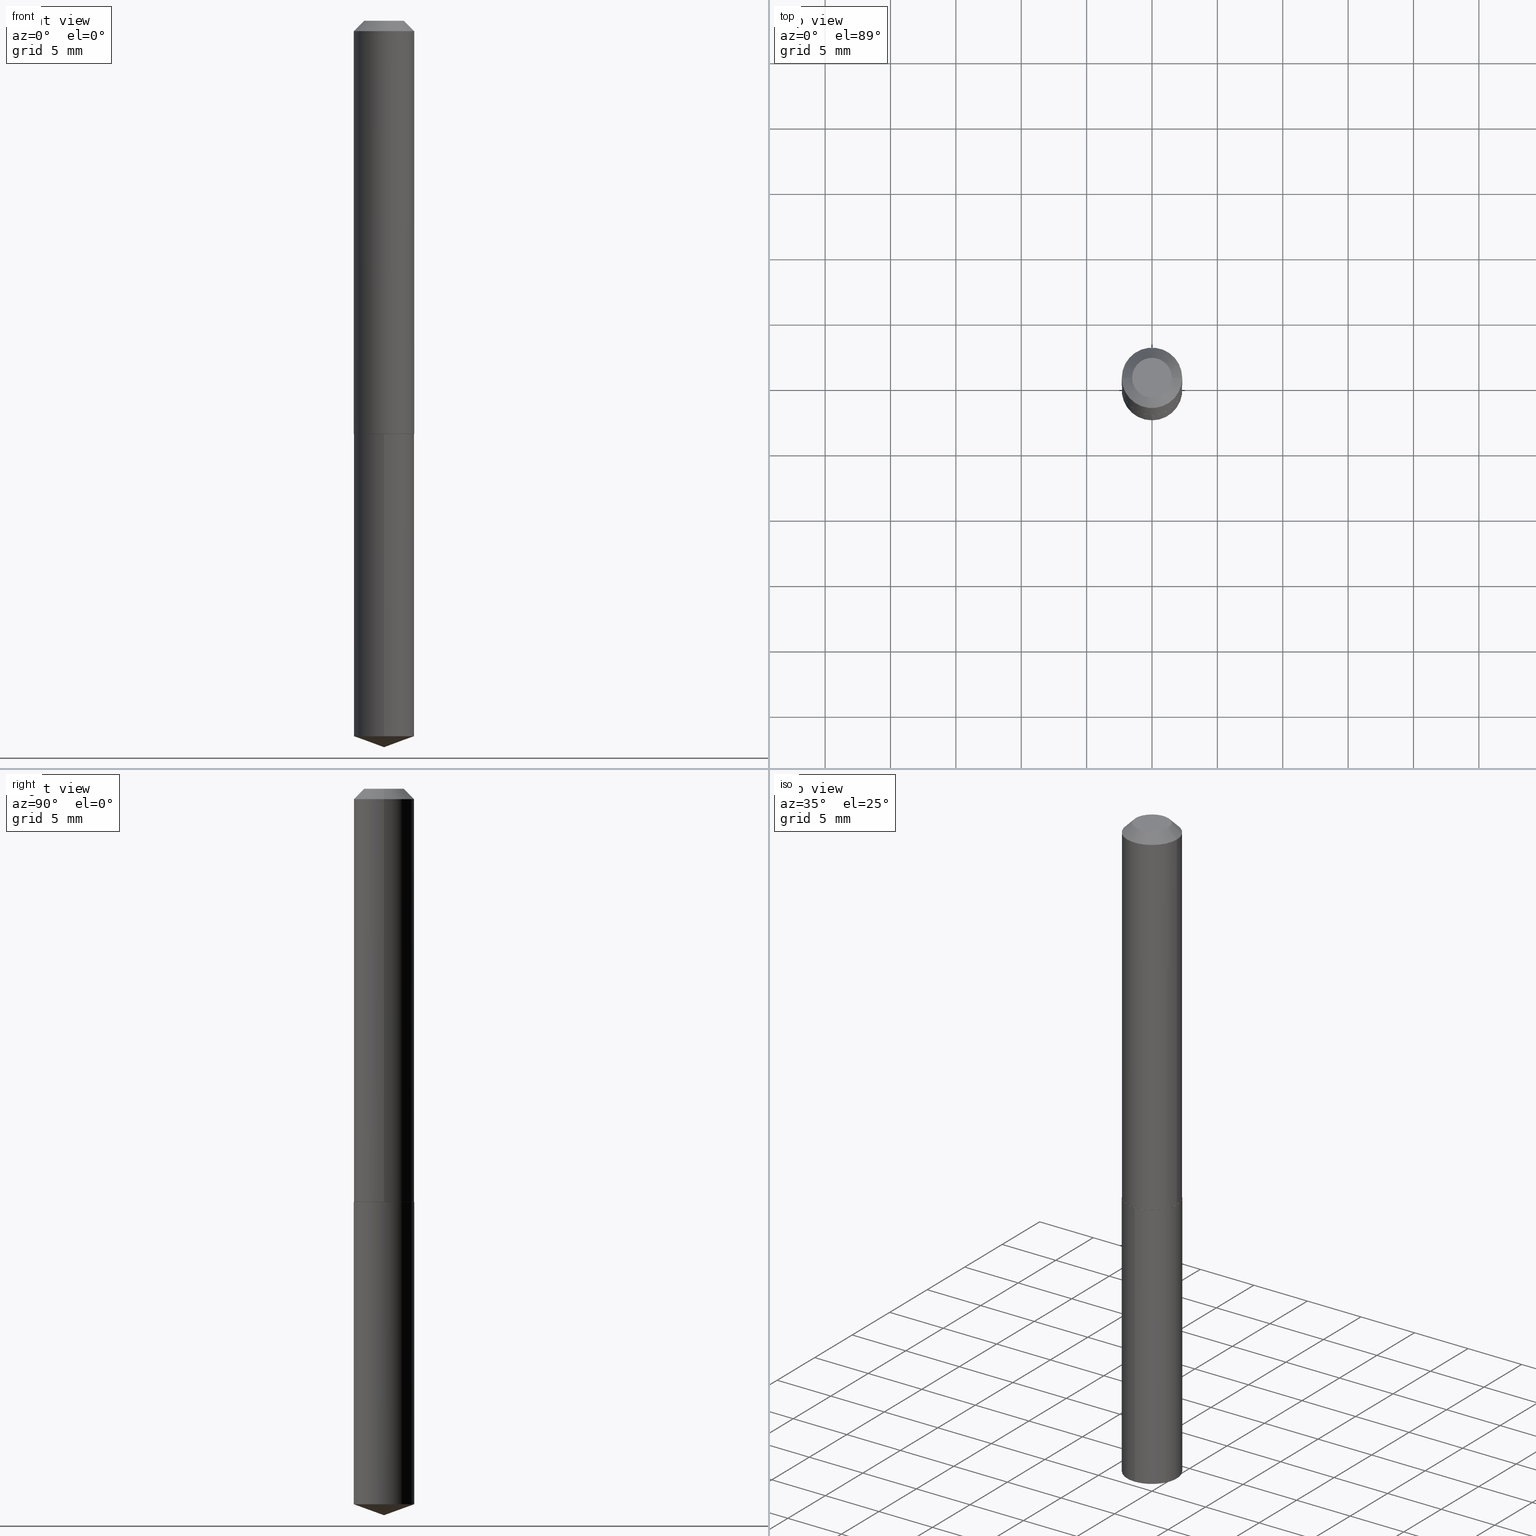
[diagram: canonical four-view strip — front | top / right | iso, engineering-drawing reading convention]
A machine part, canonical four-view strip (front | top / right | iso — engineering-drawing reading convention). The complete STEP part file that produces these views, byte-faithful:
ISO-10303-21;
HEADER;
FILE_DESCRIPTION (( 'STEP AP203' ),
    '1' );
FILE_NAME ('56014.STEP',
    '2024-04-22T19:41:53',
    ( '' ),
    ( '' ),
    'SwSTEP 2.0',
    'SolidWorks 2023',
    '' );
FILE_SCHEMA (( 'CONFIG_CONTROL_DESIGN' ));
ENDSEC;

DATA;
#1 = ORIENTED_EDGE ( 'NONE', *, *, #372, .F. ) ;
#2 = CIRCLE ( 'NONE', #322, 0.09050000000000016365 ) ;
#3 = CARTESIAN_POINT ( 'NONE',  ( 0.09050000000000016365, -4.977106648520904679E-15, -1.244500000000000384 ) ) ;
#4 = EDGE_LOOP ( 'NONE', ( #81, #135, #215, #273 ) ) ;
#5 = PLANE ( 'NONE',  #22 ) ;
#6 = MANIFOLD_SOLID_BREP ( 'Body-Move/Copy2[2]', #308 ) ;
#7 = AXIS2_PLACEMENT_3D ( 'NONE', #278, #156, #255 ) ;
#8 = ORGANIZATION ( 'UNSPECIFIED', 'UNSPECIFIED', '' ) ;
#9 = VERTEX_POINT ( 'NONE', #340 ) ;
#10 = DIRECTION ( 'NONE',  ( -1.000000000000000000, 6.982962677686265922E-15, 0.000000000000000000 ) ) ;
#11 = CC_DESIGN_PERSON_AND_ORGANIZATION_ASSIGNMENT ( #73, #239, ( #155 ) ) ;
#12 = LINE ( 'NONE', #251, #347 ) ;
#13 = DIRECTION ( 'NONE',  ( -6.982962677686265922E-15, -1.000000000000000000, 3.002030762268421058E-15 ) ) ;
#14 = AXIS2_PLACEMENT_3D ( 'NONE', #307, #373, #134 ) ;
#15 = ORIENTED_EDGE ( 'NONE', *, *, #196, .F. ) ;
#16 =( LENGTH_UNIT ( ) NAMED_UNIT ( * ) SI_UNIT ( $, .METRE. ) );
#17 = FACE_OUTER_BOUND ( 'NONE', #212, .T. ) ;
#18 = LINE ( 'NONE', #282, #79 ) ;
#19 = EDGE_CURVE ( 'NONE', #202, #359, #2, .T. ) ;
#20 = DIRECTION ( 'NONE',  ( 0.000000000000000000, 0.000000000000000000, 1.000000000000000000 ) ) ;
#21 = PERSON_AND_ORGANIZATION ( #352, #8 ) ;
#22 = AXIS2_PLACEMENT_3D ( 'NONE', #58, #162, #160 ) ;
#23 = CALENDAR_DATE ( 2024, 22, 4 ) ;
#24 = DIRECTION ( 'NONE',  ( -6.982962677686265922E-15, -1.000000000000000000, 3.002030762268421058E-15 ) ) ;
#25 = ORIENTED_EDGE ( 'NONE', *, *, #358, .T. ) ;
#26 = ADVANCED_FACE ( 'NONE', ( #216 ), #374, .F. ) ;
#27 = ORIENTED_EDGE ( 'NONE', *, *, #382, .T. ) ;
#28 = DIRECTION ( 'NONE',  ( -2.445468806185136597E-29, 3.491481338843145583E-15, 1.000000000000000000 ) ) ;
#29 = CIRCLE ( 'NONE', #165, 0.09100000000000013634 ) ;
#30 = APPROVAL_PERSON_ORGANIZATION ( #21, #231, #259 ) ;
#31 = CARTESIAN_POINT ( 'NONE',  ( 3.043385929297403293E-29, -4.345148526190295932E-15, -1.244500000000000384 ) ) ;
#32 = FACE_OUTER_BOUND ( 'NONE', #354, .T. ) ;
#33 = CIRCLE ( 'NONE', #257, 0.09099999999999999756 ) ;
#34 = DIRECTION ( 'NONE',  ( -2.445468806185136597E-29, 3.491481338843145583E-15, 1.000000000000000000 ) ) ;
#35 = DIRECTION ( 'NONE',  ( 1.000000000000000000, -6.982962677686265922E-15, 4.876176775795935793E-29 ) ) ;
#36 = EDGE_CURVE ( 'NONE', #229, #191, #151, .T. ) ;
#37 = EDGE_LOOP ( 'NONE', ( #15, #91, #27, #121 ) ) ;
#38 = DIRECTION ( 'NONE',  ( -0.7071067811865451302, 2.468850131082231817E-15, -0.7071067811865499042 ) ) ;
#39 = VECTOR ( 'NONE', #38, 39.37007874015748143 ) ;
#40 = DIRECTION ( 'NONE',  ( -2.445468806185136597E-29, 3.491481338843145583E-15, 1.000000000000000000 ) ) ;
#41 = ADVANCED_FACE ( 'NONE', ( #32 ), #5, .F. ) ;
#42 = DIRECTION ( 'NONE',  ( -6.982962677686268288E-15, -1.000000000000000000, 3.475157955500686293E-15 ) ) ;
#43 = EDGE_CURVE ( 'NONE', #237, #98, #192, .T. ) ;
#44 = CARTESIAN_POINT ( 'NONE',  ( 0.000000000000000000, 0.000000000000000000, 0.000000000000000000 ) ) ;
#45 = PERSON_AND_ORGANIZATION ( #352, #8 ) ;
#46 = CIRCLE ( 'NONE', #272, 0.09099999999999999756 ) ;
#47 = CARTESIAN_POINT ( 'NONE',  ( 2.246126659432003351E-48, -3.206873584422742284E-34, -9.184850993605184086E-20 ) ) ;
#48 = APPROVAL_DATE_TIME ( #197, #238 ) ;
#49 = ADVANCED_FACE ( 'NONE', ( #274 ), #171, .T. ) ;
#50 = ORIENTED_EDGE ( 'NONE', *, *, #178, .F. ) ;
#51 = ORIENTED_EDGE ( 'NONE', *, *, #182, .T. ) ;
#52 = CARTESIAN_POINT ( 'NONE',  ( -0.09099999999999999756, -1.579661899138169232E-15, -0.03125000000000020817 ) ) ;
#53 = CARTESIAN_POINT ( 'NONE',  ( 0.05974999999999999756, -5.716644325014536685E-16, -1.836970198686465412E-19 ) ) ;
#54 = CIRCLE ( 'NONE', #260, 0.05974999999999999756 ) ;
#55 = AXIS2_PLACEMENT_3D ( 'NONE', #44, #20, #198 ) ;
#56 = ORIENTED_EDGE ( 'NONE', *, *, #97, .T. ) ;
#57 = EDGE_LOOP ( 'NONE', ( #361, #363 ) ) ;
#58 = CARTESIAN_POINT ( 'NONE',  ( 3.043385929297402732E-29, -4.345148526190295143E-15, -1.244500000000000162 ) ) ;
#59 = CIRCLE ( 'NONE', #108, 0.09099999999999999756 ) ;
#60 = PRODUCT_DEFINITION_FORMATION_WITH_SPECIFIED_SOURCE ( 'ANY', '', #342, .NOT_KNOWN. ) ;
#61 = LINE ( 'NONE', #250, #39 ) ;
#62 = DIRECTION ( 'NONE',  ( -2.438088387897960049E-29, 3.491481338843145188E-15, 1.000000000000000000 ) ) ;
#63 = DIRECTION ( 'NONE',  ( -2.445468806185136597E-29, 3.491481338843145583E-15, 1.000000000000000000 ) ) ;
#64 = ADVANCED_FACE ( 'NONE', ( #335 ), #213, .T. ) ;
#65 = LENGTH_MEASURE_WITH_UNIT ( LENGTH_MEASURE( 0.02539999999999999897 ), #16 );
#66 = FACE_OUTER_BOUND ( 'NONE', #77, .T. ) ;
#67 = CARTESIAN_POINT ( 'NONE',  ( 7.642090019328602662E-31, -1.091087918388490267E-16, -0.03125000000000020817 ) ) ;
#68 = PERSON_AND_ORGANIZATION_ROLE ( 'creator' ) ;
#69 = CC_DESIGN_PERSON_AND_ORGANIZATION_ASSIGNMENT ( #45, #114, ( #342 ) ) ;
#70 = CALENDAR_DATE ( 2024, 22, 4 ) ;
#71 = LOCAL_TIME ( 15, 41, 53.00000000000000000, #350 ) ;
#72 = EDGE_LOOP ( 'NONE', ( #345, #112, #175, #383 ) ) ;
#73 = PERSON_AND_ORGANIZATION ( #352, #8 ) ;
#74 =( NAMED_UNIT ( * ) SI_UNIT ( $, .STERADIAN. ) SOLID_ANGLE_UNIT ( ) );
#75 = DIRECTION ( 'NONE',  ( -2.445468806185136877E-29, 3.491481338843145188E-15, 1.000000000000000000 ) ) ;
#76 = CC_DESIGN_DATE_AND_TIME_ASSIGNMENT ( #318, #315, ( #155 ) ) ;
#77 = EDGE_LOOP ( 'NONE', ( #222, #293, #168, #137 ) ) ;
#78 = AXIS2_PLACEMENT_3D ( 'NONE', #47, #113, #176 ) ;
#79 = VECTOR ( 'NONE', #312, 39.37007874015748854 ) ;
#80 = CARTESIAN_POINT ( 'NONE',  ( -0.09100000000000013634, -3.696808895979181896E-15, -1.244000000000000217 ) ) ;
#81 = ORIENTED_EDGE ( 'NONE', *, *, #19, .T. ) ;
#82 = DIRECTION ( 'NONE',  ( 1.000000000000000000, -6.982962677686269077E-15, 0.000000000000000000 ) ) ;
#83 = ADVANCED_FACE ( 'NONE', ( #124 ), #130, .T. ) ;
#84 = EDGE_LOOP ( 'NONE', ( #310, #51, #90, #240 ) ) ;
#85 = APPLICATION_CONTEXT ( 'configuration controlled 3d designs of mechanical parts and assemblies' ) ;
#86 = DIRECTION ( 'NONE',  ( 1.000000000000000000, -6.982962677686265922E-15, 4.876176775795936353E-29 ) ) ;
#87 = AXIS2_PLACEMENT_3D ( 'NONE', #299, #337, #164 ) ;
#88 = ORIENTED_EDGE ( 'NONE', *, *, #43, .F. ) ;
#89 = DIRECTION ( 'NONE',  ( -2.445468806185136597E-29, 3.491481338843145583E-15, 1.000000000000000000 ) ) ;
#90 = ORIENTED_EDGE ( 'NONE', *, *, #208, .F. ) ;
#91 = ORIENTED_EDGE ( 'NONE', *, *, #178, .T. ) ;
#92 = AXIS2_PLACEMENT_3D ( 'NONE', #379, #226, #100 ) ;
#93 = DIRECTION ( 'NONE',  ( -2.445565010550058900E-29, 3.491343568716964475E-15, 1.000000000000000000 ) ) ;
#94 = CARTESIAN_POINT ( 'NONE',  ( 7.642090019328602662E-31, -1.091087918388490267E-16, -0.03125000000000020817 ) ) ;
#95 = CARTESIAN_POINT ( 'NONE',  ( 5.349673460578253967E-29, -7.637314056568359123E-15, -2.187500000000000000 ) ) ;
#96 = ORIENTED_EDGE ( 'NONE', *, *, #302, .F. ) ;
#97 = EDGE_CURVE ( 'NONE', #9, #191, #61, .T. ) ;
#98 = VERTEX_POINT ( 'NONE', #214 ) ;
#99 = DIRECTION ( 'NONE',  ( -2.445565010550058900E-29, 3.491343568716964869E-15, 1.000000000000000000 ) ) ;
#100 = DIRECTION ( 'NONE',  ( -1.000000000000000000, 6.982962677686265922E-15, 0.000000000000000000 ) ) ;
#101 = VECTOR ( 'NONE', #339, 39.37007874015748143 ) ;
#102 = LINE ( 'NONE', #284, #336 ) ;
#103 = EDGE_CURVE ( 'NONE', #242, #9, #220, .T. ) ;
#104 = DIRECTION ( 'NONE',  ( -2.445468806185136877E-29, 3.491481338843145188E-15, 1.000000000000000000 ) ) ;
#105 = ORIENTED_EDGE ( 'NONE', *, *, #19, .F. ) ;
#106 = APPROVAL_DATE_TIME ( #288, #297 ) ;
#107 = PERSON_AND_ORGANIZATION ( #352, #8 ) ;
#108 = AXIS2_PLACEMENT_3D ( 'NONE', #303, #93, #275 ) ;
#109 = APPROVAL_DATE_TIME ( #261, #231 ) ;
#110 = ADVANCED_FACE ( 'NONE', ( #304 ), #329, .T. ) ;
#111 = PERSON_AND_ORGANIZATION_ROLE ( 'classification_officer' ) ;
#112 = ORIENTED_EDGE ( 'NONE', *, *, #372, .T. ) ;
#113 = DIRECTION ( 'NONE',  ( 2.438088387897960049E-29, -3.491481338843145188E-15, -1.000000000000000000 ) ) ;
#114 = PERSON_AND_ORGANIZATION_ROLE ( 'design_owner' ) ;
#115 = DESIGN_CONTEXT ( 'detailed design', #85, 'design' ) ;
#116 = ORIENTED_EDGE ( 'NONE', *, *, #306, .F. ) ;
#117 = AXIS2_PLACEMENT_3D ( 'NONE', #366, #63, #184 ) ;
#118 = VECTOR ( 'NONE', #104, 39.37007874015748143 ) ;
#119 = FACE_OUTER_BOUND ( 'NONE', #57, .T. ) ;
#120 = CC_DESIGN_DATE_AND_TIME_ASSIGNMENT ( #201, #319, ( #323 ) ) ;
#121 = ORIENTED_EDGE ( 'NONE', *, *, #338, .F. ) ;
#122 = CARTESIAN_POINT ( 'NONE',  ( 3.042163194894310491E-29, -4.343402785520873640E-15, -1.244000000000000217 ) ) ;
#123 = ORIENTED_EDGE ( 'NONE', *, *, #384, .T. ) ;
#124 = FACE_OUTER_BOUND ( 'NONE', #84, .T. ) ;
#125 = AXIS2_PLACEMENT_3D ( 'NONE', #371, #271, #13 ) ;
#126 = DIRECTION ( 'NONE',  ( -2.445565010550058900E-29, 3.491343568716964475E-15, 1.000000000000000000 ) ) ;
#127 = EDGE_LOOP ( 'NONE', ( #105, #50 ) ) ;
#128 = ADVANCED_FACE ( 'NONE', ( #17 ), #364, .T. ) ;
#129 = CARTESIAN_POINT ( 'NONE',  ( 6.465938895417215229E-16, 0.09099999999999566769, -1.244500000000000384 ) ) ;
#130 = CYLINDRICAL_SURFACE ( 'NONE', #174, 0.09099999999999999756 ) ;
#131 = MANIFOLD_SOLID_BREP ( 'Body-Move/Copy2[1]', #334 ) ;
#132 = VERTEX_POINT ( 'NONE', #281 ) ;
#133 = AXIS2_PLACEMENT_3D ( 'NONE', #187, #225, #42 ) ;
#134 = DIRECTION ( 'NONE',  ( 1.000000000000000000, -6.982962677686269077E-15, 0.000000000000000000 ) ) ;
#135 = ORIENTED_EDGE ( 'NONE', *, *, #196, .T. ) ;
#136 = CYLINDRICAL_SURFACE ( 'NONE', #346, 0.09100000000000006695 ) ;
#137 = ORIENTED_EDGE ( 'NONE', *, *, #358, .F. ) ;
#138 = CC_DESIGN_APPROVAL ( #231, ( #60 ) ) ;
#139 =( NAMED_UNIT ( * ) PLANE_ANGLE_UNIT ( ) SI_UNIT ( $, .RADIAN. ) );
#140 = COORDINATED_UNIVERSAL_TIME_OFFSET ( 5, 0, .BEHIND. ) ;
#141 = APPROVAL_STATUS ( 'not_yet_approved' ) ;
#142 = VECTOR ( 'NONE', #321, 39.37007874015748143 ) ;
#143 = AXIS2_PLACEMENT_3D ( 'NONE', #67, #166, #376 ) ;
#144 = CARTESIAN_POINT ( 'NONE',  ( 3.043385929297402732E-29, -4.345148526190295143E-15, -1.244500000000000162 ) ) ;
#145 = PERSON_AND_ORGANIZATION ( #352, #8 ) ;
#146 = CARTESIAN_POINT ( 'NONE',  ( -6.354496036694198049E-16, -0.09100000000000434131, -1.244499999999999718 ) ) ;
#147 = SECURITY_CLASSIFICATION_LEVEL ( 'unclassified' ) ;
#148 = DIRECTION ( 'NONE',  ( -2.445565010550058900E-29, 3.491343568716964475E-15, 1.000000000000000000 ) ) ;
#149 = ADVANCED_FACE ( 'NONE', ( #66 ), #136, .T. ) ;
#150 = VERTEX_POINT ( 'NONE', #211 ) ;
#151 = CIRCLE ( 'NONE', #87, 0.09099999999999999756 ) ;
#152 =( GEOMETRIC_REPRESENTATION_CONTEXT ( 3 ) GLOBAL_UNCERTAINTY_ASSIGNED_CONTEXT ( ( #314 ) ) GLOBAL_UNIT_ASSIGNED_CONTEXT ( ( #195, #139, #74 ) ) REPRESENTATION_CONTEXT ( 'NONE', 'WORKASPACE' ) );
#153 = DIRECTION ( 'NONE',  ( -2.445565010550058900E-29, 3.491343568716964475E-15, 1.000000000000000000 ) ) ;
#154 = ORIENTED_EDGE ( 'NONE', *, *, #227, .F. ) ;
#155 = PRODUCT_DEFINITION ( 'UNKNOWN', '', #60, #115 ) ;
#156 = DIRECTION ( 'NONE',  ( -2.445468806185136597E-29, 3.491481338843145583E-15, 1.000000000000000000 ) ) ;
#157 = EDGE_LOOP ( 'NONE', ( #96, #123, #88 ) ) ;
#158 = AXIS2_PLACEMENT_3D ( 'NONE', #301, #34, #159 ) ;
#159 = DIRECTION ( 'NONE',  ( 1.000000000000000000, -6.982962677686272233E-15, 0.000000000000000000 ) ) ;
#160 = DIRECTION ( 'NONE',  ( 6.982962677686265922E-15, 1.000000000000000000, -3.491343568716964869E-15 ) ) ;
#161 = LINE ( 'NONE', #256, #300 ) ;
#162 = DIRECTION ( 'NONE',  ( 2.445565010550058340E-29, -3.491343568716964869E-15, -1.000000000000000000 ) ) ;
#163 = LINE ( 'NONE', #223, #101 ) ;
#164 = DIRECTION ( 'NONE',  ( 1.000000000000000000, -6.982962677686265922E-15, 0.000000000000000000 ) ) ;
#165 = AXIS2_PLACEMENT_3D ( 'NONE', #265, #179, #82 ) ;
#166 = DIRECTION ( 'NONE',  ( -2.445468806185136597E-29, 3.491481338843145583E-15, 1.000000000000000000 ) ) ;
#167 = DIRECTION ( 'NONE',  ( 1.000000000000000000, -6.982962677686265922E-15, 4.876176775795936353E-29 ) ) ;
#168 = ORIENTED_EDGE ( 'NONE', *, *, #36, .F. ) ;
#169 = CARTESIAN_POINT ( 'NONE',  ( 0.09100000000000006695, -6.354496036694506690E-16, 4.437320865974305243E-30 ) ) ;
#170 = EDGE_CURVE ( 'NONE', #270, #252, #46, .T. ) ;
#171 = CONICAL_SURFACE ( 'NONE', #286, 0.09099999999999999756, 0.7853981633974449483 ) ;
#172 = ADVANCED_FACE ( 'NONE', ( #355 ), #370, .T. ) ;
#173 = PERSON_AND_ORGANIZATION ( #352, #8 ) ;
#174 = AXIS2_PLACEMENT_3D ( 'NONE', #188, #246, #305 ) ;
#175 = ORIENTED_EDGE ( 'NONE', *, *, #36, .T. ) ;
#176 = DIRECTION ( 'NONE',  ( -1.000000000000000000, 6.982962677686265922E-15, -4.876176775795935793E-29 ) ) ;
#177 = CALENDAR_DATE ( 2024, 22, 4 ) ;
#178 = EDGE_CURVE ( 'NONE', #359, #202, #298, .T. ) ;
#179 = DIRECTION ( 'NONE',  ( -2.445468806185136597E-29, 3.491481338843145583E-15, 1.000000000000000000 ) ) ;
#180 = CIRCLE ( 'NONE', #14, 0.09100000000000013634 ) ;
#181 = CARTESIAN_POINT ( 'NONE',  ( 3.043385929297402732E-29, -4.345148526190295143E-15, -1.244500000000000162 ) ) ;
#182 = EDGE_CURVE ( 'NONE', #237, #270, #235, .T. ) ;
#183 = DIRECTION ( 'NONE',  ( 1.000000000000000000, -6.982962677686272233E-15, 0.000000000000000000 ) ) ;
#184 = DIRECTION ( 'NONE',  ( 1.000000000000000000, -6.982962677686269077E-15, 0.000000000000000000 ) ) ;
#185 = DIRECTION ( 'NONE',  ( 2.445468806185136597E-29, -3.491481338843145583E-15, -1.000000000000000000 ) ) ;
#186 = CC_DESIGN_PERSON_AND_ORGANIZATION_ASSIGNMENT ( #173, #111, ( #323 ) ) ;
#187 = CARTESIAN_POINT ( 'NONE',  ( -9.093253329528377196E-28, 1.298169856978389306E-13, 37.18257874015748143 ) ) ;
#188 = CARTESIAN_POINT ( 'NONE',  ( 3.043385929297402732E-29, -4.345148526190295143E-15, -1.244500000000000162 ) ) ;
#189 = DIRECTION ( 'NONE',  ( 6.676917655467978384E-15, 0.9396926207859109814, 0.3420201433256616075 ) ) ;
#190 = EDGE_LOOP ( 'NONE', ( #199, #234, #116 ) ) ;
#191 = VERTEX_POINT ( 'NONE', #52 ) ;
#192 = CIRCLE ( 'NONE', #125, 0.09099999999999999756 ) ;
#193 = AXIS2_PLACEMENT_3D ( 'NONE', #122, #388, #351 ) ;
#194 = LOCAL_TIME ( 15, 41, 53.00000000000000000, #200 ) ;
#195 =( CONVERSION_BASED_UNIT ( 'INCH', #65 ) LENGTH_UNIT ( ) NAMED_UNIT ( #378 ) );
#196 = EDGE_CURVE ( 'NONE', #359, #132, #269, .T. ) ;
#197 = DATE_AND_TIME ( #289, #365 ) ;
#198 = DIRECTION ( 'NONE',  ( 1.000000000000000000, 0.000000000000000000, 0.000000000000000000 ) ) ;
#199 = ORIENTED_EDGE ( 'NONE', *, *, #384, .F. ) ;
#200 = COORDINATED_UNIVERSAL_TIME_OFFSET ( 5, 0, .BEHIND. ) ;
#201 = DATE_AND_TIME ( #23, #71 ) ;
#202 = VERTEX_POINT ( 'NONE', #3 ) ;
#203 = CARTESIAN_POINT ( 'NONE',  ( 6.465938895417437096E-16, 0.09099999999999247580, -2.154378708681776278 ) ) ;
#204 = MECHANICAL_CONTEXT ( 'NONE', #330, 'mechanical' ) ;
#205 = VECTOR ( 'NONE', #295, 39.37007874015748143 ) ;
#206 = CC_DESIGN_APPROVAL ( #297, ( #323 ) ) ;
#207 = CARTESIAN_POINT ( 'NONE',  ( 6.465938895417439069E-16, 0.09099999999999563993, -1.244500000000000384 ) ) ;
#208 = EDGE_CURVE ( 'NONE', #252, #270, #33, .T. ) ;
#209 = ORIENTED_EDGE ( 'NONE', *, *, #338, .T. ) ;
#210 = FACE_OUTER_BOUND ( 'NONE', #390, .T. ) ;
#211 = CARTESIAN_POINT ( 'NONE',  ( 0.09100000000000013634, -4.978852389190325393E-15, -1.244000000000000217 ) ) ;
#212 = EDGE_LOOP ( 'NONE', ( #1, #320, #56, #219 ) ) ;
#213 = CONICAL_SURFACE ( 'NONE', #117, 0.09100000000000013634, 0.7853981633972434429 ) ;
#214 = CARTESIAN_POINT ( 'NONE',  ( -6.354496036693975195E-16, -0.09100000000000753320, -2.154378708681775834 ) ) ;
#215 = ORIENTED_EDGE ( 'NONE', *, *, #264, .F. ) ;
#216 = FACE_OUTER_BOUND ( 'NONE', #127, .T. ) ;
#217 = ORIENTED_EDGE ( 'NONE', *, *, #182, .F. ) ;
#218 = ADVANCED_FACE ( 'NONE', ( #290 ), #316, .T. ) ;
#219 = ORIENTED_EDGE ( 'NONE', *, *, #367, .T. ) ;
#220 = CIRCLE ( 'NONE', #7, 0.05974999999999999756 ) ;
#221 = DIRECTION ( 'NONE',  ( 0.7071067811865451302, -7.319954787623248157E-15, -0.7071067811865499042 ) ) ;
#222 = ORIENTED_EDGE ( 'NONE', *, *, #264, .T. ) ;
#223 = CARTESIAN_POINT ( 'NONE',  ( 0.09100000000000013634, -4.978852389190325393E-15, -1.244000000000000217 ) ) ;
#224 = ORIENTED_EDGE ( 'NONE', *, *, #367, .F. ) ;
#225 = DIRECTION ( 'NONE',  ( -2.445565010550058900E-29, 3.491343568716964475E-15, 1.000000000000000000 ) ) ;
#226 = DIRECTION ( 'NONE',  ( 2.445468806185136597E-29, -3.491481338843145583E-15, -1.000000000000000000 ) ) ;
#227 = EDGE_CURVE ( 'NONE', #132, #191, #266, .T. ) ;
#228 = DIRECTION ( 'NONE',  ( -2.445468806185136597E-29, 3.491481338843145583E-15, 1.000000000000000000 ) ) ;
#229 = VERTEX_POINT ( 'NONE', #362 ) ;
#230 = PERSON_AND_ORGANIZATION ( #352, #8 ) ;
#231 = APPROVAL ( #141, 'UNSPECIFIED' ) ;
#232 = APPLICATION_PROTOCOL_DEFINITION ( 'international standard', 'config_control_design', 1994, #330 ) ;
#233 = PERSON_AND_ORGANIZATION_ROLE ( 'design_supplier' ) ;
#234 = ORIENTED_EDGE ( 'NONE', *, *, #302, .T. ) ;
#235 = LINE ( 'NONE', #129, #205 ) ;
#236 = APPROVAL_ROLE ( '' ) ;
#237 = VERTEX_POINT ( 'NONE', #203 ) ;
#238 = APPROVAL ( #389, 'UNSPECIFIED' ) ;
#239 = PERSON_AND_ORGANIZATION_ROLE ( 'creator' ) ;
#240 = ORIENTED_EDGE ( 'NONE', *, *, #349, .F. ) ;
#241 = PLANE ( 'NONE',  #78 ) ;
#242 = VERTEX_POINT ( 'NONE', #53 ) ;
#243 = CARTESIAN_POINT ( 'NONE',  ( -0.09100000000000006695, 6.465938895416916448E-16, -4.476230932131967703E-30 ) ) ;
#244 = ADVANCED_FACE ( 'NONE', ( #119 ), #241, .F. ) ;
#245 = ORIENTED_EDGE ( 'NONE', *, *, #208, .T. ) ;
#246 = DIRECTION ( 'NONE',  ( -2.445565010550058900E-29, 3.491343568716964475E-15, 1.000000000000000000 ) ) ;
#247 = LOCAL_TIME ( 15, 41, 53.00000000000000000, #140 ) ;
#248 = EDGE_LOOP ( 'NONE', ( #217, #268, #332, #331 ) ) ;
#249 = DIRECTION ( 'NONE',  ( -6.982962677686265922E-15, -1.000000000000000000, 3.002030762268421058E-15 ) ) ;
#250 = CARTESIAN_POINT ( 'NONE',  ( -0.09099999999999999756, 5.263408118306011740E-16, -0.03125000000000020817 ) ) ;
#251 = CARTESIAN_POINT ( 'NONE',  ( -6.354496036694198049E-16, -0.09100000000000434131, -1.244499999999999718 ) ) ;
#252 = VERTEX_POINT ( 'NONE', #146 ) ;
#253 = AXIS2_PLACEMENT_3D ( 'NONE', #333, #62, #35 ) ;
#254 = DIRECTION ( 'NONE',  ( 1.000000000000000000, -6.982962677686266711E-15, 4.876164187836129365E-29 ) ) ;
#255 = DIRECTION ( 'NONE',  ( 1.000000000000000000, -6.982962677686266711E-15, 4.876164187836129365E-29 ) ) ;
#256 = CARTESIAN_POINT ( 'NONE',  ( 5.349675560295468937E-29, -7.637314056568360701E-15, -2.187500000000000000 ) ) ;
#257 = AXIS2_PLACEMENT_3D ( 'NONE', #144, #148, #249 ) ;
#258 = CC_DESIGN_PERSON_AND_ORGANIZATION_ASSIGNMENT ( #317, #233, ( #60 ) ) ;
#259 = APPROVAL_ROLE ( '' ) ;
#260 = AXIS2_PLACEMENT_3D ( 'NONE', #277, #228, #254 ) ;
#261 = DATE_AND_TIME ( #70, #247 ) ;
#262 = DIRECTION ( 'NONE',  ( -2.445565010550058900E-29, 3.491343568716964475E-15, 1.000000000000000000 ) ) ;
#263 = APPROVAL_STATUS ( 'not_yet_approved' ) ;
#264 = EDGE_CURVE ( 'NONE', #150, #132, #29, .T. ) ;
#265 = CARTESIAN_POINT ( 'NONE',  ( 3.042163194894310491E-29, -4.343402785520873640E-15, -1.244000000000000217 ) ) ;
#266 = LINE ( 'NONE', #243, #267 ) ;
#267 = VECTOR ( 'NONE', #75, 39.37007874015748143 ) ;
#268 = ORIENTED_EDGE ( 'NONE', *, *, #43, .T. ) ;
#269 = LINE ( 'NONE', #80, #142 ) ;
#270 = VERTEX_POINT ( 'NONE', #207 ) ;
#271 = DIRECTION ( 'NONE',  ( -2.445565010550058900E-29, 3.491343568716964475E-15, 1.000000000000000000 ) ) ;
#272 = AXIS2_PLACEMENT_3D ( 'NONE', #327, #153, #24 ) ;
#273 = ORIENTED_EDGE ( 'NONE', *, *, #382, .F. ) ;
#274 = FACE_OUTER_BOUND ( 'NONE', #72, .T. ) ;
#275 = DIRECTION ( 'NONE',  ( -6.982962677686265922E-15, -1.000000000000000000, 3.002030762268421058E-15 ) ) ;
#276 = DIRECTION ( 'NONE',  ( -6.982962677686268288E-15, -1.000000000000000000, 3.475157955500686293E-15 ) ) ;
#277 = CARTESIAN_POINT ( 'NONE',  ( 4.492253318864006702E-48, -6.413747168845484567E-34, -1.836970198721036817E-19 ) ) ;
#278 = CARTESIAN_POINT ( 'NONE',  ( 4.492253318864006702E-48, -6.413747168845484567E-34, -1.836970198721036817E-19 ) ) ;
#279 = AXIS2_PLACEMENT_3D ( 'NONE', #181, #262, #360 ) ;
#280 = PRODUCT_RELATED_PRODUCT_CATEGORY ( 'detail', '', ( #342 ) ) ;
#281 = CARTESIAN_POINT ( 'NONE',  ( -0.09100000000000013634, -3.696808895979181896E-15, -1.244000000000000217 ) ) ;
#282 = CARTESIAN_POINT ( 'NONE',  ( 5.349434007913963545E-29, -7.637656966412424781E-15, -2.187500000000000000 ) ) ;
#283 = ADVANCED_BREP_SHAPE_REPRESENTATION ( '56014', ( #131, #6, #55 ), #152 ) ;
#284 = CARTESIAN_POINT ( 'NONE',  ( 0.09099999999999999756, -7.334141096360584981E-16, -0.03125000000000020817 ) ) ;
#285 = ADVANCED_FACE ( 'NONE', ( #210 ), #325, .T. ) ;
#286 = AXIS2_PLACEMENT_3D ( 'NONE', #94, #185, #10 ) ;
#287 = APPROVAL_PERSON_ORGANIZATION ( #107, #238, #348 ) ;
#288 = DATE_AND_TIME ( #177, #357 ) ;
#289 = CALENDAR_DATE ( 2024, 22, 4 ) ;
#290 = FACE_OUTER_BOUND ( 'NONE', #4, .T. ) ;
#291 = COORDINATED_UNIVERSAL_TIME_OFFSET ( 5, 0, .BEHIND. ) ;
#292 = ADVANCED_FACE ( 'NONE', ( #328 ), #356, .T. ) ;
#293 = ORIENTED_EDGE ( 'NONE', *, *, #227, .T. ) ;
#294 = SHAPE_DEFINITION_REPRESENTATION ( #313, #283 ) ;
#295 = DIRECTION ( 'NONE',  ( -2.445565010550058900E-29, 3.491343568716964869E-15, 1.000000000000000000 ) ) ;
#296 = CARTESIAN_POINT ( 'NONE',  ( 0.000000000000000000, 0.000000000000000000, 0.000000000000000000 ) ) ;
#297 = APPROVAL ( #263, 'UNSPECIFIED' ) ;
#298 = CIRCLE ( 'NONE', #158, 0.09050000000000016365 ) ;
#299 = CARTESIAN_POINT ( 'NONE',  ( 7.642090019328602662E-31, -1.091087918388490267E-16, -0.03125000000000020817 ) ) ;
#300 = VECTOR ( 'NONE', #189, 39.37007874015748143 ) ;
#301 = CARTESIAN_POINT ( 'NONE',  ( 3.043385929297403293E-29, -4.345148526190295932E-15, -1.244500000000000384 ) ) ;
#302 = EDGE_CURVE ( 'NONE', #369, #237, #161, .T. ) ;
#303 = CARTESIAN_POINT ( 'NONE',  ( 5.268553463094024344E-29, -7.521847704058909608E-15, -2.154378708681776278 ) ) ;
#304 = FACE_OUTER_BOUND ( 'NONE', #157, .T. ) ;
#305 = DIRECTION ( 'NONE',  ( -6.982962677686265922E-15, -1.000000000000000000, 3.002030762268421058E-15 ) ) ;
#306 = EDGE_CURVE ( 'NONE', #98, #237, #59, .T. ) ;
#307 = CARTESIAN_POINT ( 'NONE',  ( 3.042163194894310491E-29, -4.343402785520873640E-15, -1.244000000000000217 ) ) ;
#308 = CLOSED_SHELL ( 'NONE', ( #49, #149, #218, #26, #64, #285, #128, #244 ) ) ;
#309 = CARTESIAN_POINT ( 'NONE',  ( 0.000000000000000000, 0.000000000000000000, 0.000000000000000000 ) ) ;
#310 = ORIENTED_EDGE ( 'NONE', *, *, #306, .T. ) ;
#311 = CIRCLE ( 'NONE', #143, 0.09099999999999999756 ) ;
#312 = DIRECTION ( 'NONE',  ( -6.561838499445211107E-15, -0.9396926207859085389, 0.3420201433256681578 ) ) ;
#313 = PRODUCT_DEFINITION_SHAPE ( 'NONE', 'NONE',  #155 ) ;
#314 = UNCERTAINTY_MEASURE_WITH_UNIT (LENGTH_MEASURE( 1.000000000000000082E-05 ), #195, 'distance_accuracy_value', 'NONE');
#315 = DATE_TIME_ROLE ( 'creation_date' ) ;
#316 = CONICAL_SURFACE ( 'NONE', #193, 0.09100000000000013634, 0.7853981633972434429 ) ;
#317 = PERSON_AND_ORGANIZATION ( #352, #8 ) ;
#318 = DATE_AND_TIME ( #387, #194 ) ;
#319 = DATE_TIME_ROLE ( 'classification_date' ) ;
#320 = ORIENTED_EDGE ( 'NONE', *, *, #343, .F. ) ;
#321 = DIRECTION ( 'NONE',  ( -0.7071067811864026886, 7.493145998869830357E-15, 0.7071067811866923458 ) ) ;
#322 = AXIS2_PLACEMENT_3D ( 'NONE', #31, #89, #183 ) ;
#323 = SECURITY_CLASSIFICATION ( '', '', #147 ) ;
#324 = APPLICATION_PROTOCOL_DEFINITION ( 'international standard', 'config_control_design', 1994, #85 ) ;
#325 = CYLINDRICAL_SURFACE ( 'NONE', #385, 0.09100000000000006695 ) ;
#326 = CC_DESIGN_PERSON_AND_ORGANIZATION_ASSIGNMENT ( #230, #68, ( #60 ) ) ;
#327 = CARTESIAN_POINT ( 'NONE',  ( 3.043385929297402732E-29, -4.345148526190295143E-15, -1.244500000000000162 ) ) ;
#328 = FACE_OUTER_BOUND ( 'NONE', #190, .T. ) ;
#329 = CONICAL_SURFACE ( 'NONE', #381, 108.1684023407345165, 1.221730476396034826 ) ;
#330 = APPLICATION_CONTEXT ( 'configuration controlled 3d designs of mechanical parts and assemblies' ) ;
#331 = ORIENTED_EDGE ( 'NONE', *, *, #170, .F. ) ;
#332 = ORIENTED_EDGE ( 'NONE', *, *, #349, .T. ) ;
#333 = CARTESIAN_POINT ( 'NONE',  ( 4.201184633424592146E-30, -8.101816844549600016E-15, -1.244500000000000384 ) ) ;
#334 = CLOSED_SHELL ( 'NONE', ( #83, #292, #110, #172, #41 ) ) ;
#335 = FACE_OUTER_BOUND ( 'NONE', #37, .T. ) ;
#336 = VECTOR ( 'NONE', #221, 39.37007874015748143 ) ;
#337 = DIRECTION ( 'NONE',  ( -2.445468806185136597E-29, 3.491481338843145583E-15, 1.000000000000000000 ) ) ;
#338 = EDGE_CURVE ( 'NONE', #132, #150, #180, .T. ) ;
#339 = DIRECTION ( 'NONE',  ( 0.7071067811864026886, -2.468850131080739687E-15, 0.7071067811866923458 ) ) ;
#340 = CARTESIAN_POINT ( 'NONE',  ( -0.05974999999999999756, 4.717864159111778069E-16, -1.836970198752120845E-19 ) ) ;
#341 = CC_DESIGN_APPROVAL ( #238, ( #155 ) ) ;
#342 = PRODUCT ( '56014', '56014', '', ( #204 ) ) ;
#343 = EDGE_CURVE ( 'NONE', #9, #242, #54, .T. ) ;
#344 = CARTESIAN_POINT ( 'NONE',  ( -0.09050000000000016365, -3.699458123153293097E-15, -1.244500000000000384 ) ) ;
#345 = ORIENTED_EDGE ( 'NONE', *, *, #103, .F. ) ;
#346 = AXIS2_PLACEMENT_3D ( 'NONE', #309, #40, #167 ) ;
#347 = VECTOR ( 'NONE', #99, 39.37007874015748143 ) ;
#348 = APPROVAL_ROLE ( '' ) ;
#349 = EDGE_CURVE ( 'NONE', #98, #252, #12, .T. ) ;
#350 = COORDINATED_UNIVERSAL_TIME_OFFSET ( 5, 0, .BEHIND. ) ;
#351 = DIRECTION ( 'NONE',  ( 1.000000000000000000, -6.982962677686269077E-15, 0.000000000000000000 ) ) ;
#352 = PERSON ( 'UNSPECIFIED', 'UNSPECIFIED', 'UNSPECIFIED', ('UNSPECIFIED'), ('UNSPECIFIED'), ('UNSPECIFIED') ) ;
#353 = COORDINATED_UNIVERSAL_TIME_OFFSET ( 5, 0, .BEHIND. ) ;
#354 = EDGE_LOOP ( 'NONE', ( #245, #368 ) ) ;
#355 = FACE_OUTER_BOUND ( 'NONE', #248, .T. ) ;
#356 = CONICAL_SURFACE ( 'NONE', #133, 108.1684023407345165, 1.221730476396034826 ) ;
#357 = LOCAL_TIME ( 15, 41, 53.00000000000000000, #353 ) ;
#358 = EDGE_CURVE ( 'NONE', #150, #229, #380, .T. ) ;
#359 = VERTEX_POINT ( 'NONE', #344 ) ;
#360 = DIRECTION ( 'NONE',  ( -6.982962677686265922E-15, -1.000000000000000000, 3.002030762268421058E-15 ) ) ;
#361 = ORIENTED_EDGE ( 'NONE', *, *, #343, .T. ) ;
#362 = CARTESIAN_POINT ( 'NONE',  ( 0.09099999999999999756, -7.445583955082992766E-16, -0.03125000000000020817 ) ) ;
#363 = ORIENTED_EDGE ( 'NONE', *, *, #103, .T. ) ;
#364 = CONICAL_SURFACE ( 'NONE', #92, 0.09099999999999999756, 0.7853981633974449483 ) ;
#365 = LOCAL_TIME ( 15, 41, 53.00000000000000000, #291 ) ;
#366 = CARTESIAN_POINT ( 'NONE',  ( 3.042163194894310491E-29, -4.343402785520873640E-15, -1.244000000000000217 ) ) ;
#367 = EDGE_CURVE ( 'NONE', #191, #229, #311, .T. ) ;
#368 = ORIENTED_EDGE ( 'NONE', *, *, #170, .T. ) ;
#369 = VERTEX_POINT ( 'NONE', #95 ) ;
#370 = CYLINDRICAL_SURFACE ( 'NONE', #279, 0.09099999999999999756 ) ;
#371 = CARTESIAN_POINT ( 'NONE',  ( 5.268553463094024344E-29, -7.521847704058909608E-15, -2.154378708681776278 ) ) ;
#372 = EDGE_CURVE ( 'NONE', #242, #229, #102, .T. ) ;
#373 = DIRECTION ( 'NONE',  ( -2.445468806185136597E-29, 3.491481338843145583E-15, 1.000000000000000000 ) ) ;
#374 = PLANE ( 'NONE',  #253 ) ;
#375 = CC_DESIGN_SECURITY_CLASSIFICATION ( #323, ( #60 ) ) ;
#376 = DIRECTION ( 'NONE',  ( 1.000000000000000000, -6.982962677686265922E-15, 0.000000000000000000 ) ) ;
#377 = CARTESIAN_POINT ( 'NONE',  ( -9.093253329528377196E-28, 1.298169856978389306E-13, 37.18257874015748143 ) ) ;
#378 = DIMENSIONAL_EXPONENTS ( 1.000000000000000000, 0.000000000000000000, 0.000000000000000000, 0.000000000000000000, 0.000000000000000000, 0.000000000000000000, 0.000000000000000000 ) ;
#379 = CARTESIAN_POINT ( 'NONE',  ( 7.642090019328602662E-31, -1.091087918388490267E-16, -0.03125000000000020817 ) ) ;
#380 = LINE ( 'NONE', #169, #118 ) ;
#381 = AXIS2_PLACEMENT_3D ( 'NONE', #377, #126, #276 ) ;
#382 = EDGE_CURVE ( 'NONE', #202, #150, #163, .T. ) ;
#383 = ORIENTED_EDGE ( 'NONE', *, *, #97, .F. ) ;
#384 = EDGE_CURVE ( 'NONE', #369, #98, #18, .T. ) ;
#385 = AXIS2_PLACEMENT_3D ( 'NONE', #296, #28, #86 ) ;
#386 = APPROVAL_PERSON_ORGANIZATION ( #145, #297, #236 ) ;
#387 = CALENDAR_DATE ( 2024, 22, 4 ) ;
#388 = DIRECTION ( 'NONE',  ( -2.445468806185136597E-29, 3.491481338843145583E-15, 1.000000000000000000 ) ) ;
#389 = APPROVAL_STATUS ( 'not_yet_approved' ) ;
#390 = EDGE_LOOP ( 'NONE', ( #154, #209, #25, #224 ) ) ;
ENDSEC;
END-ISO-10303-21;
